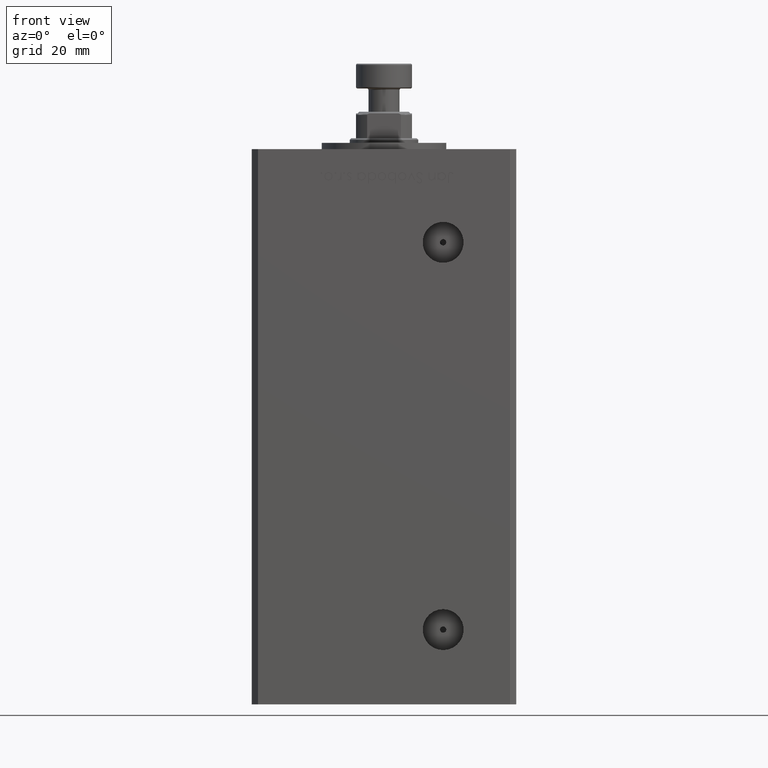
[diagram: clean part render]
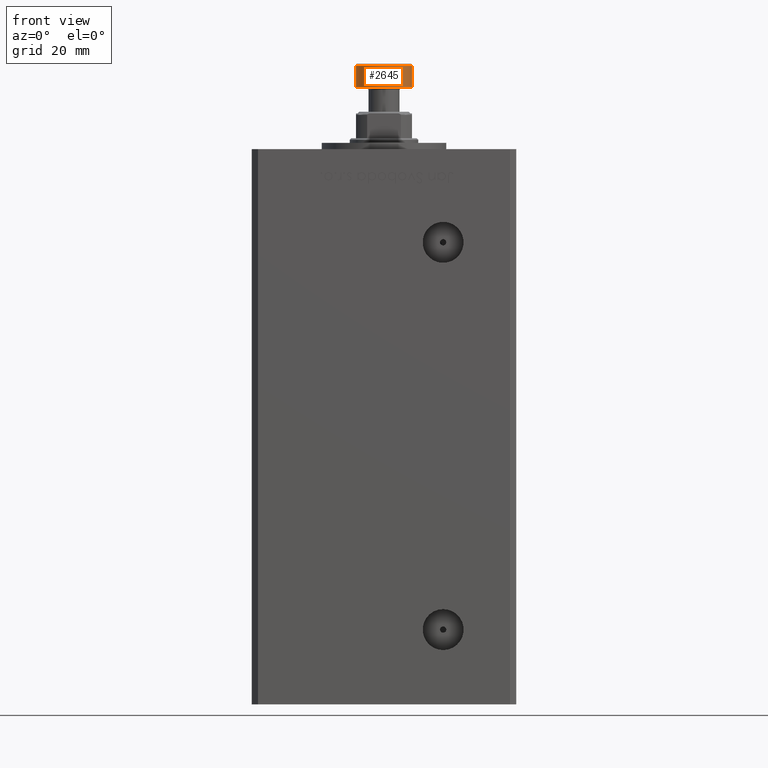
[diagram: same view with one face highlighted and labeled with its STEP entity id]
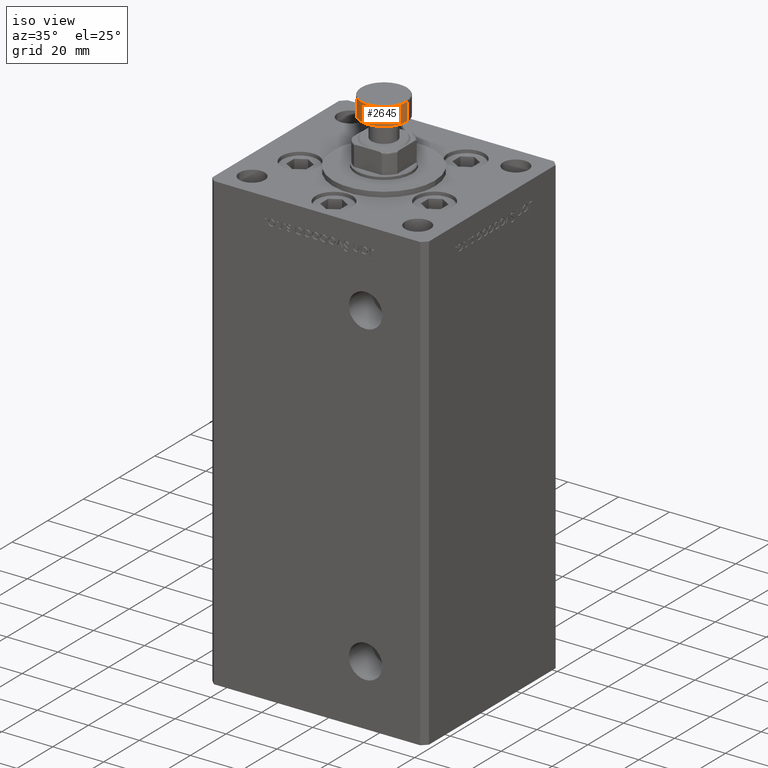
[diagram: same view with one face highlighted and labeled with its STEP entity id]
A machine part, front view. The second image highlights one B-rep face of the part: STEP entity #2645.
A second angle (iso view) of the same face is appended — the face is thin or edge-on in the first view.
In plain terms, the highlighted cylindrical surface (edge-blend (fillet) strip) has radius 9 mm, axis along (0, 0, 1).
Its self-contained STEP definition (entity closure, byte-faithful):
#452 = CARTESIAN_POINT ( 'NONE',  ( 0.000000000000000000, 0.000000000000000000, -8.000000000000000000 ) ) ;
#1014 = DIRECTION ( 'NONE',  ( -0.000000000000000000, -0.000000000000000000, -1.000000000000000000 ) ) ;
#2645 = ADVANCED_FACE ( 'NONE', ( #29472 ), #32684, .T. ) ;
#2986 = VERTEX_POINT ( 'NONE', #37671 ) ;
#3849 = VERTEX_POINT ( 'NONE', #38856 ) ;
#4437 = AXIS2_PLACEMENT_3D ( 'NONE', #25236, #1014, #32978 ) ;
#5263 = CIRCLE ( 'NONE', #4437, 9.000000000000000000 ) ;
#5738 = VECTOR ( 'NONE', #36307, 1000.000000000000000 ) ;
#8460 = CARTESIAN_POINT ( 'NONE',  ( -9.000000000000000000, 1.102182119232617714E-15, -0.5000000000000004441 ) ) ;
#9656 = DIRECTION ( 'NONE',  ( 0.000000000000000000, 0.000000000000000000, 1.000000000000000000 ) ) ;
#9693 = EDGE_CURVE ( 'NONE', #2986, #3849, #24052, .T. ) ;
#10916 = ORIENTED_EDGE ( 'NONE', *, *, #9693, .F. ) ;
#13317 = AXIS2_PLACEMENT_3D ( 'NONE', #452, #45736, #25473 ) ;
#16651 = ORIENTED_EDGE ( 'NONE', *, *, #25643, .T. ) ;
#17813 = DIRECTION ( 'NONE',  ( 0.000000000000000000, 0.000000000000000000, 1.000000000000000000 ) ) ;
#18372 = EDGE_CURVE ( 'NONE', #51702, #3849, #5263, .T. ) ;
#20103 = EDGE_CURVE ( 'NONE', #34954, #51702, #50879, .T. ) ;
#21633 = CARTESIAN_POINT ( 'NONE',  ( 0.000000000000000000, 0.000000000000000000, -7.500000000000000000 ) ) ;
#21898 = ORIENTED_EDGE ( 'NONE', *, *, #18372, .T. ) ;
#22633 = EDGE_LOOP ( 'NONE', ( #16651, #27945, #21898, #10916 ) ) ;
#22694 = VECTOR ( 'NONE', #17813, 1000.000000000000000 ) ;
#24052 = LINE ( 'NONE', #40327, #5738 ) ;
#25236 = CARTESIAN_POINT ( 'NONE',  ( 0.000000000000000000, 0.000000000000000000, -0.5000000000000004441 ) ) ;
#25473 = DIRECTION ( 'NONE',  ( 1.000000000000000000, 0.000000000000000000, 0.000000000000000000 ) ) ;
#25643 = EDGE_CURVE ( 'NONE', #2986, #34954, #52698, .T. ) ;
#25886 = DIRECTION ( 'NONE',  ( 1.000000000000000000, 0.000000000000000000, 0.000000000000000000 ) ) ;
#27945 = ORIENTED_EDGE ( 'NONE', *, *, #20103, .T. ) ;
#29472 = FACE_OUTER_BOUND ( 'NONE', #22633, .T. ) ;
#32684 = CYLINDRICAL_SURFACE ( 'NONE', #13317, 9.000000000000000000 ) ;
#32978 = DIRECTION ( 'NONE',  ( 1.000000000000000000, 0.000000000000000000, 0.000000000000000000 ) ) ;
#34954 = VERTEX_POINT ( 'NONE', #48134 ) ;
#36307 = DIRECTION ( 'NONE',  ( 0.000000000000000000, 0.000000000000000000, 1.000000000000000000 ) ) ;
#37671 = CARTESIAN_POINT ( 'NONE',  ( 9.000000000000000000, 0.000000000000000000, -7.500000000000000000 ) ) ;
#38856 = CARTESIAN_POINT ( 'NONE',  ( 9.000000000000000000, 0.000000000000000000, -0.5000000000000004441 ) ) ;
#40327 = CARTESIAN_POINT ( 'NONE',  ( 9.000000000000000000, 0.000000000000000000, -8.000000000000000000 ) ) ;
#45736 = DIRECTION ( 'NONE',  ( 0.000000000000000000, 0.000000000000000000, 1.000000000000000000 ) ) ;
#48134 = CARTESIAN_POINT ( 'NONE',  ( -9.000000000000000000, 1.102182119232617714E-15, -7.500000000000000000 ) ) ;
#50879 = LINE ( 'NONE', #51409, #22694 ) ;
#51409 = CARTESIAN_POINT ( 'NONE',  ( -9.000000000000000000, 1.102182119232617714E-15, -8.000000000000000000 ) ) ;
#51702 = VERTEX_POINT ( 'NONE', #8460 ) ;
#51825 = AXIS2_PLACEMENT_3D ( 'NONE', #21633, #9656, #25886 ) ;
#52698 = CIRCLE ( 'NONE', #51825, 9.000000000000000000 ) ;